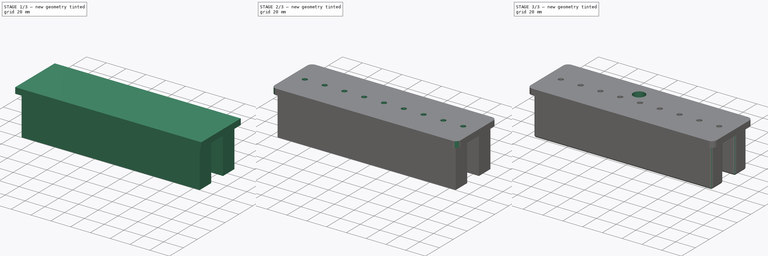
[diagram: build sequence overview — one tinted view per stage of 3, left to right]
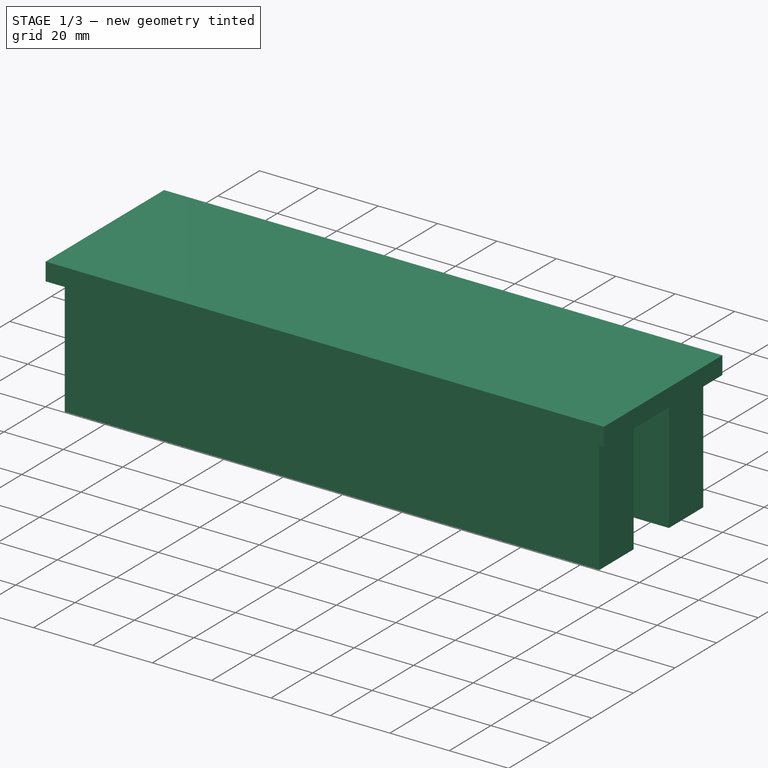
[diagram: stage 1 of 3 — iso view after this stage's code; geometry added in this stage tinted green]
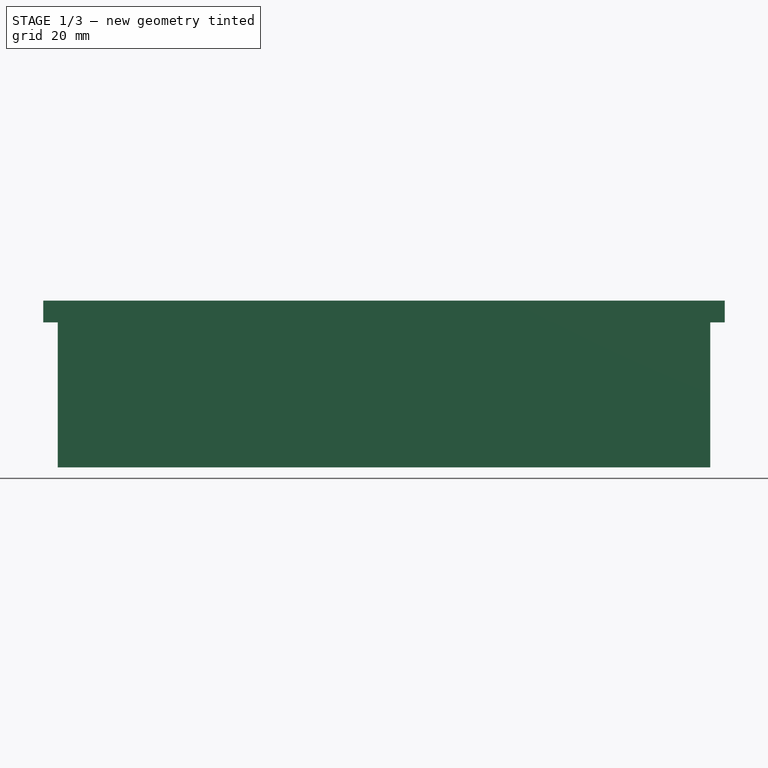
[diagram: stage 1 of 3 — front view after this stage's code; geometry added in this stage tinted green]
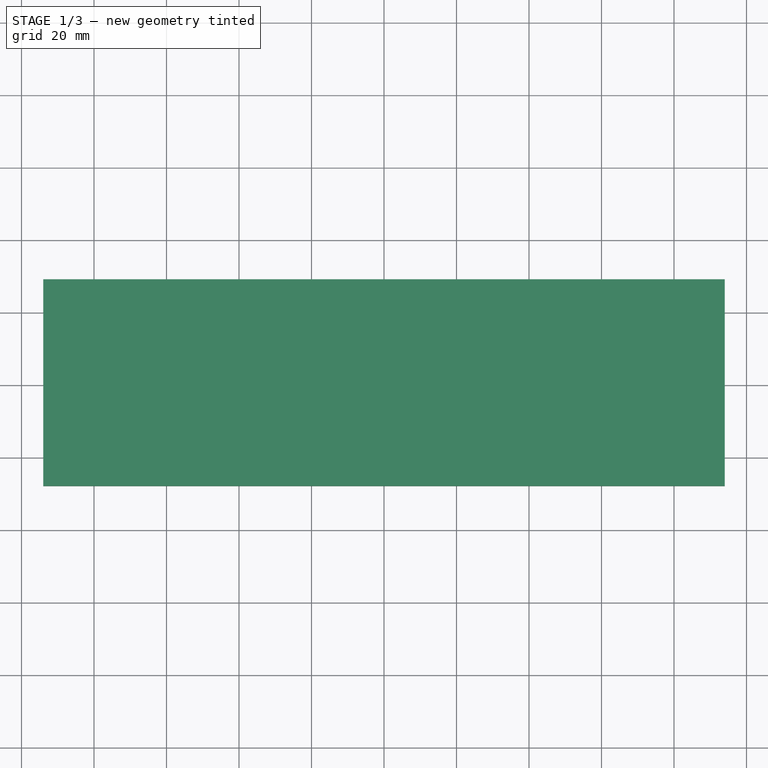
[diagram: stage 1 of 3 — top view after this stage's code; geometry added in this stage tinted green]
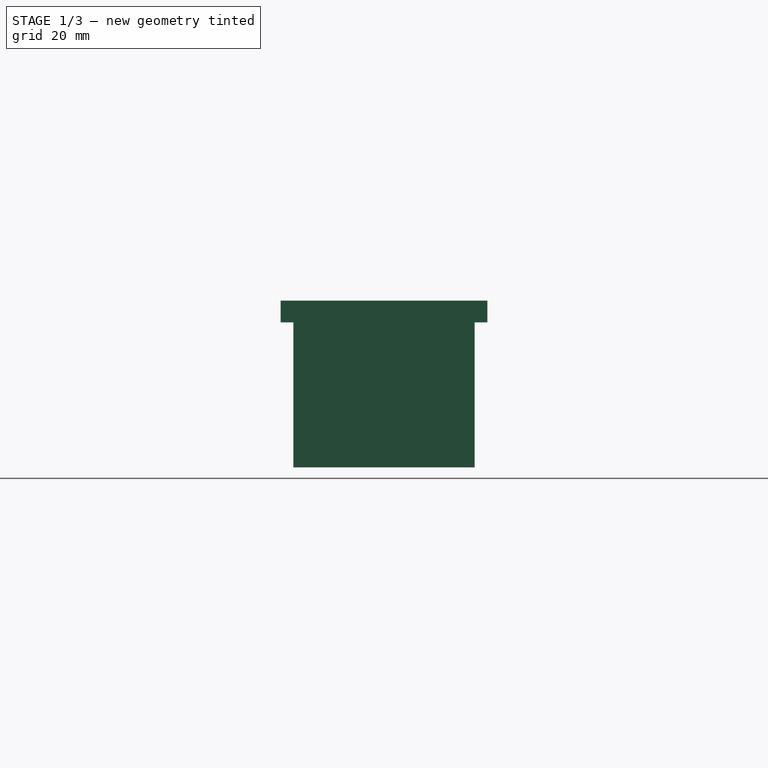
[diagram: stage 1 of 3 — right view after this stage's code; geometry added in this stage tinted green]
FCSTD DOCUMENT  (FreeCAD 0.18R16155 (Git))
Label: base
License: All rights reserved
LicenseURL: http://en.wikipedia.org/wiki/All_rights_reserved
objects: Sketcher::SketchObject×7, PartDesign::Pocket×4, PartDesign::Pad×2, PartDesign::Fillet×2, PartDesign::Body×1
note: 22 computed .brp shape members not serialized (recipe doc carries the construction recipe); baked Part::Feature solids carry a one-line shape summary decoded from their .brp

FEATURE [Sketcher::SketchObject] Sketch
  MapMode = 5
  Support = -> [XY_Plane]
  sketch-geometry (4):
    g0: LineSegment StartX=-90 StartY=25 StartZ=0 EndX=90 EndY=25 EndZ=0
    g1: LineSegment StartX=90 StartY=25 StartZ=0 EndX=90 EndY=-25 EndZ=0
    g2: LineSegment StartX=90 StartY=-25 StartZ=0 EndX=-90 EndY=-25 EndZ=0
    g3: LineSegment StartX=-90 StartY=-25 StartZ=0 EndX=-90 EndY=25 EndZ=0
  constraints (11):
    c: Coincident(g0,g1)
    c: Coincident(g1,g2)
    c: Coincident(g2,g3)
    c: Coincident(g3,g0)
    c: Horizontal(g0)
    c: Horizontal(g2)
    c: Vertical(g1)
    c: Vertical(g3)
    c: Symmetric(g2,g0,g-1)
    c: DistanceX(g0,g0) = 180
    c: DistanceY(g1,g1) = 50
FEATURE [PartDesign::Pad] Pad
  Length = 40
  Length2 = 100
  Profile = -> Sketch
  Type = 0
FEATURE [Sketcher::SketchObject] Sketch001
  MapMode = 5
  Placement = pos=(0,0,40) rot=(0,0,1;0rad)
  Support = -> [Pad]
  sketch-geometry (4):
    g0: LineSegment StartX=-94 StartY=-28.5 StartZ=0 EndX=94 EndY=-28.5 EndZ=0
    g1: LineSegment StartX=94 StartY=-28.5 StartZ=0 EndX=94 EndY=28.5 EndZ=0
    g2: LineSegment StartX=94 StartY=28.5 StartZ=0 EndX=-94 EndY=28.5 EndZ=0
    g3: LineSegment StartX=-94 StartY=28.5 StartZ=0 EndX=-94 EndY=-28.5 EndZ=0
  constraints (11):
    c: Coincident(g0,g1)
    c: Coincident(g1,g2)
    c: Coincident(g2,g3)
    c: Coincident(g3,g0)
    c: Horizontal(g0)
    c: Horizontal(g2)
    c: Vertical(g1)
    c: Vertical(g3)
    c: Symmetric(g1,g0,g-1)
    c: DistanceY(g1,g1) = 57
    c: DistanceX(g2,g2) = 188
FEATURE [PartDesign::Pad] Pad001
  BaseFeature = -> Pad
  Length = 6
  Length2 = 100
  Profile = -> Sketch001
  Type = 0
FEATURE [Sketcher::SketchObject] Sketch002
  MapMode = 5
  Placement = pos=(0,0,0) rot=(1,0,0;3.14159rad)
  Support = -> [Pad001]
FEATURE [Sketcher::SketchObject] Sketch003
  ExternalGeometry = -> [Pad001]
  MapMode = 5
  Placement = pos=(0,0,0) rot=(1,0,0;3.14159rad)
  Support = -> [Pad001]
  expr: Constraints[66] = Constraints.wall_thickness
  expr: Constraints[54] = Constraints.wall_thickness
  expr: Constraints[53] = Constraints.wall_thickness
  expr: Constraints[52] = Constraints.wall_thickness
  expr: Constraints[9] = Constraints.wall_thickness
  sketch-geometry (26):
    g0: LineSegment StartX=-85 StartY=-20 StartZ=0 EndX=85 EndY=-20 EndZ=0
    g1: LineSegment [constr] StartX=85 StartY=-20 StartZ=0 EndX=85 EndY=20 EndZ=0
    g2: LineSegment StartX=85 StartY=20 StartZ=0 EndX=-85 EndY=20 EndZ=0
    g3: LineSegment [constr] StartX=-85 StartY=20 StartZ=0 EndX=-85 EndY=-20 EndZ=0
    g4: LineSegment StartX=-85 StartY=13.5 StartZ=0 EndX=-66 EndY=13.5 EndZ=0
    g5: LineSegment StartX=-66 StartY=13.5 StartZ=0 EndX=-66 EndY=-13.5 EndZ=0
    g6: LineSegment StartX=-66 StartY=-13.5 StartZ=0 EndX=-85 EndY=-13.5 EndZ=0
    g7: LineSegment [constr] StartX=-85 StartY=-13.5 StartZ=0 EndX=-85 EndY=13.5 EndZ=0
    g8: LineSegment StartX=85 StartY=13.5 StartZ=0 EndX=66 EndY=13.5 EndZ=0
    g9: LineSegment StartX=66 StartY=13.5 StartZ=0 EndX=66 EndY=-13.5 EndZ=0
    g10: LineSegment StartX=66 StartY=-13.5 StartZ=0 EndX=85 EndY=-13.5 EndZ=0
    g11: LineSegment [constr] StartX=85 StartY=-13.5 StartZ=0 EndX=85 EndY=13.5 EndZ=0
    g12: LineSegment StartX=-85 StartY=-13.5 StartZ=0 EndX=-85 EndY=-20 EndZ=0
    g13: LineSegment StartX=-85 StartY=13.5 StartZ=0 EndX=-85 EndY=20 EndZ=0
    g14: LineSegment StartX=85 StartY=13.5 StartZ=0 EndX=85 EndY=20 EndZ=0
    g15: LineSegment StartX=85 StartY=-13.5 StartZ=0 EndX=85 EndY=-20 EndZ=0
    g16: GeomPoint X=66 Y=0 Z=0
    g17: LineSegment StartX=-71 StartY=-8.5 StartZ=0 EndX=-121 EndY=-8.5 EndZ=0
    g18: LineSegment StartX=-121 StartY=-8.5 StartZ=0 EndX=-121 EndY=8.5 EndZ=0
    g19: LineSegment StartX=-121 StartY=8.5 StartZ=0 EndX=-71 EndY=8.5 EndZ=0
    g20: LineSegment StartX=-71 StartY=8.5 StartZ=0 EndX=-71 EndY=-8.5 EndZ=0
    g21: LineSegment StartX=71 StartY=-8.5 StartZ=0 EndX=121 EndY=-8.5 EndZ=0
    g22: LineSegment StartX=121 StartY=-8.5 StartZ=0 EndX=121 EndY=8.5 EndZ=0
    g23: LineSegment StartX=121 StartY=8.5 StartZ=0 EndX=71 EndY=8.5 EndZ=0
    g24: LineSegment StartX=71 StartY=8.5 StartZ=0 EndX=71 EndY=-8.5 EndZ=0
    g25: GeomPoint X=-80 Y=0 Z=0
  constraints (72):
    c: Coincident(g0,g1)
    c: Coincident(g1,g2)
    c: Coincident(g2,g3)
    c: Coincident(g3,g0)
    c: Horizontal(g0)
    c: Horizontal(g2)
    c: Vertical(g1)
    c: Vertical(g3)
    c: Symmetric(g1,g0,g-1)
    c: DistanceX(g1,g-4) = 5
    c: DistanceY(g1,g-4) = 5  'wall_thickness'
    c: Coincident(g4,g5)
    c: Coincident(g5,g6)
    c: Coincident(g6,g7)
    c: Coincident(g7,g4)
    c: Horizontal(g4)
    c: Horizontal(g6)
    c: Vertical(g5)
    c: Vertical(g7)
    c: PointOnObject(g4,g3)
    c: Coincident(g8,g9)
    c: Coincident(g9,g10)
    c: Coincident(g10,g11)
    c: Coincident(g11,g8)
    c: Horizontal(g8)
    c: Horizontal(g10)
    c: Vertical(g9)
    c: Vertical(g11)
    c: PointOnObject(g8,g1)
    c: Horizontal(g9,g5)
    c: Horizontal(g4,g8)
    c: Coincident(g12,g6)
    c: Coincident(g12,g0)
    c: Coincident(g13,g4)
    c: Coincident(g13,g2)
    c: Coincident(g14,g8)
    c: Coincident(g14,g2)
    c: Coincident(g15,g10)
    c: Coincident(g15,g0)
    c: PointOnObject(g16,g-1)
    c: Symmetric(g9,g8,g16)
    c: DistanceX(g8,g8) = 19
    c: Equal(g8,g4)
    c: DistanceY(g9,g9) = 27
    c: Coincident(g17,g18)
    c: Coincident(g18,g19)
    c: Coincident(g19,g20)
    c: Coincident(g20,g17)
    c: Horizontal(g17)
    c: Horizontal(g19)
    c: Vertical(g18)
    c: Vertical(g20)
    c: DistanceY(g5,g17) = 5
    c: DistanceX(g17,g5) = 5
    c: DistanceY(g19,g4) = 5
    c: DistanceX(g17,g17) = 50
    c: Coincident(g21,g22)
    c: Coincident(g22,g23)
    c: Coincident(g23,g24)
    c: Coincident(g24,g21)
    c: Horizontal(g21)
    c: Horizontal(g23)
    c: Vertical(g22)
    c: Vertical(g24)
    c: Horizontal(g21,g17)
    c: Horizontal(g23,g19)
    c: DistanceX(g9,g21) = 5
    c: DistanceX(g21,g21) = 50
    c: DistanceY(g20,g20) = 17
    c: PointOnObject(g25,g-1)
    c: DistanceX(g25,g-1) = 80
    c: DistanceX(g25,g17) = 9
FEATURE [PartDesign::Pocket] Pocket
  BaseFeature = -> Pad001
  Length = 38
  Length2 = 100
  Profile = -> Sketch003
  Type = 0
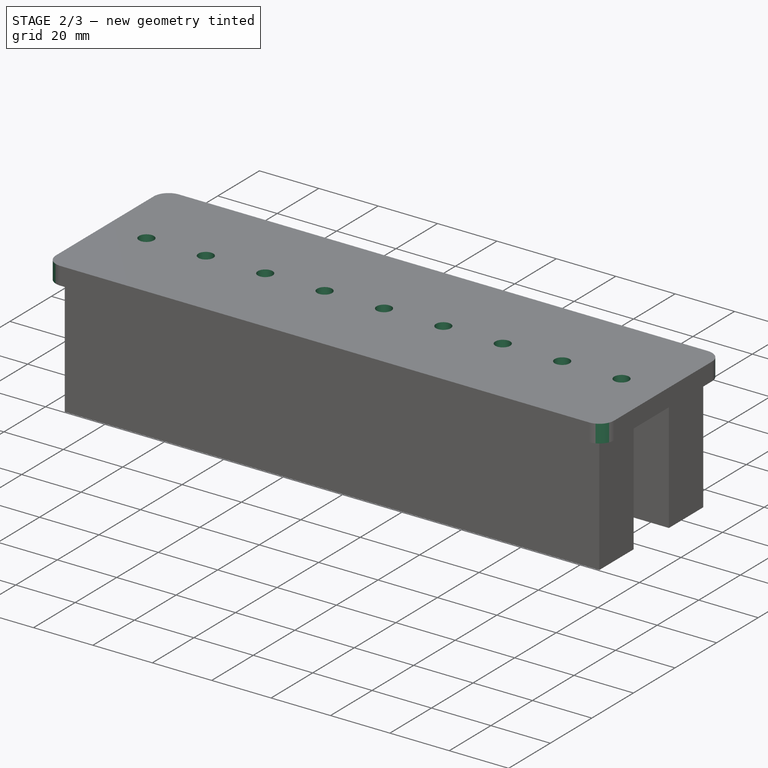
[diagram: stage 2 of 3 — iso view after this stage's code; geometry added in this stage tinted green]
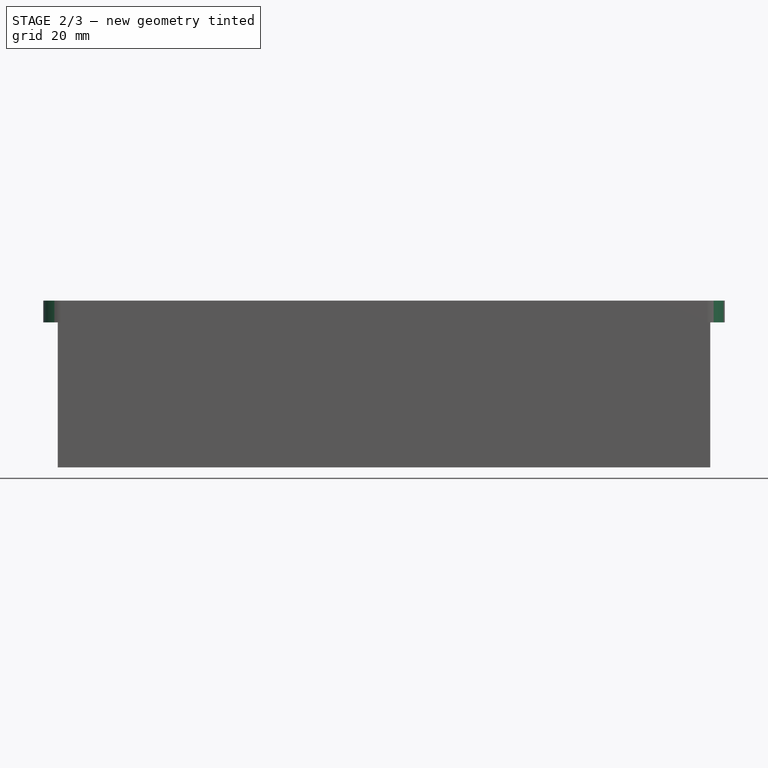
[diagram: stage 2 of 3 — front view after this stage's code; geometry added in this stage tinted green]
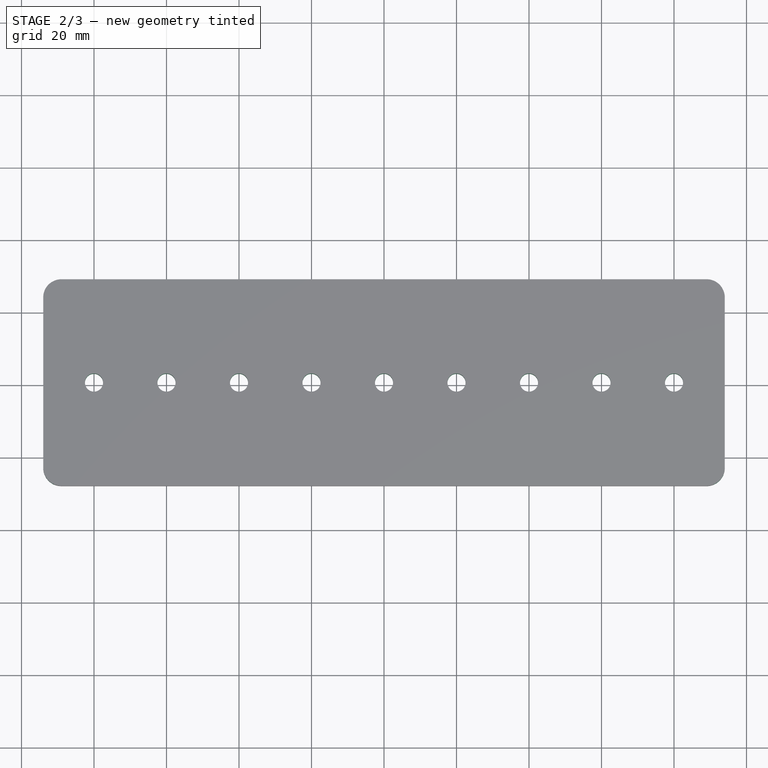
[diagram: stage 2 of 3 — top view after this stage's code; geometry added in this stage tinted green]
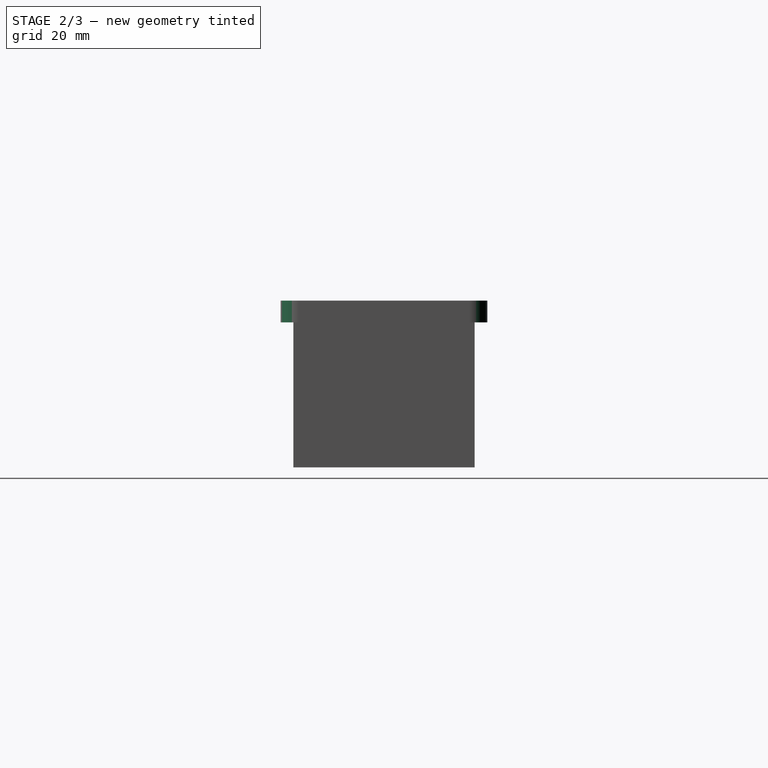
[diagram: stage 2 of 3 — right view after this stage's code; geometry added in this stage tinted green]
FEATURE [Sketcher::SketchObject] Sketch004
  MapMode = 5
  Placement = pos=(0,0,46) rot=(0,0,1;0rad)
  Support = -> [Pocket]
  sketch-geometry (17):
    g0: Circle CenterX=-80 CenterY=0 CenterZ=0 NormalX=0 NormalY=0 NormalZ=1 AngleXU=0 Radius=2.5
    g1: Circle CenterX=-60 CenterY=1.8133e-12 CenterZ=0 NormalX=0 NormalY=0 NormalZ=1 AngleXU=0 Radius=2.5
    g2: LineSegment [constr] StartX=-80 StartY=0 StartZ=0 EndX=-60 EndY=1.8133e-12 EndZ=0
    g3: Circle CenterX=-40 CenterY=-1.21888e-11 CenterZ=0 NormalX=0 NormalY=0 NormalZ=1 AngleXU=0 Radius=2.5
    g4: LineSegment [constr] StartX=-60 StartY=1.8133e-12 StartZ=0 EndX=-40 EndY=-1.21888e-11 EndZ=0
    g5: Circle CenterX=-20 CenterY=-1.01915e-11 CenterZ=0 NormalX=0 NormalY=0 NormalZ=1 AngleXU=0 Radius=2.5
    g6: LineSegment [constr] StartX=-40 StartY=-1.21888e-11 StartZ=0 EndX=-20 EndY=-1.01915e-11 EndZ=0
    g7: Circle CenterX=3.6e-15 CenterY=-6.7307e-12 CenterZ=0 NormalX=0 NormalY=0 NormalZ=1 AngleXU=0 Radius=2.5
    g8: LineSegment [constr] StartX=-20 StartY=-1.01915e-11 StartZ=0 EndX=3.6e-15 EndY=-6.7307e-12 EndZ=0
    g9: Circle CenterX=20 CenterY=-3.269e-12 CenterZ=0 NormalX=0 NormalY=0 NormalZ=1 AngleXU=0 Radius=2.5
    g10: LineSegment [constr] StartX=3.6e-15 StartY=-6.7307e-12 StartZ=0 EndX=20 EndY=-3.269e-12 EndZ=0
    g11: Circle CenterX=40 CenterY=2.555e-13 CenterZ=0 NormalX=0 NormalY=0 NormalZ=1 AngleXU=0 Radius=2.5
    g12: LineSegment [constr] StartX=20 StartY=-3.269e-12 StartZ=0 EndX=40 EndY=2.555e-13 EndZ=0
    g13: Circle CenterX=60 CenterY=6.7422e-12 CenterZ=0 NormalX=0 NormalY=0 NormalZ=1 AngleXU=0 Radius=2.5
    g14: LineSegment [constr] StartX=40 StartY=2.555e-13 StartZ=0 EndX=60 EndY=6.7422e-12 EndZ=0
    g15: Circle CenterX=80 CenterY=9.5e-14 CenterZ=0 NormalX=0 NormalY=0 NormalZ=1 AngleXU=0 Radius=2.5
    g16: LineSegment [constr] StartX=60 StartY=6.7422e-12 StartZ=0 EndX=80 EndY=9.5e-14 EndZ=0
  constraints (42):
    c: PointOnObject(g0,g-1)
    c: Diameter(g0) = 5
    c: Diameter(g1) = 5
    c: Coincident(g0,g2)
    c: Coincident(g1,g2)
    c: Distance(g2) = 20
    c: Angle(g2) = 0
    c: Diameter(g3) = 5
    c: Coincident(g1,g4)
    c: Coincident(g3,g4)
    c: Equal(g2,g4)
    c: Parallel(g4,g2)
    c: Diameter(g5) = 5
    c: Coincident(g3,g6)
    c: Coincident(g5,g6)
    c: Equal(g2,g6)
    c: Parallel(g6,g2)
    c: Diameter(g7) = 5
    c: Coincident(g5,g8)
    c: Coincident(g7,g8)
    c: Equal(g2,g8)
    c: Parallel(g8,g2)
    c: Diameter(g9) = 5
    c: Coincident(g7,g10)
    c: Coincident(g9,g10)
    c: Equal(g2,g10)
    c: Parallel(g10,g2)
    c: Diameter(g11) = 5
    c: Coincident(g9,g12)
    c: Coincident(g11,g12)
    c: Equal(g2,g12)
    c: Parallel(g12,g2)
    c: Diameter(g13) = 5
    c: Coincident(g11,g14)
    c: Coincident(g13,g14)
    c: Equal(g2,g14)
    c: Parallel(g14,g2)
    c: Diameter(g15) = 5
    c: Coincident(g13,g16)
    c: Coincident(g15,g16)
    c: Equal(g2,g16)
    c: Symmetric(g15,g0,g-1)
FEATURE [PartDesign::Pocket] Pocket001
  BaseFeature = -> Pocket
  Length = 5
  Length2 = 100
  Profile = -> Sketch004
  Type = 1
FEATURE [PartDesign::Fillet] Fillet
  Base = -> Pocket001 [Edge8,Edge2,Edge1,Edge5]
  BaseFeature = -> Pocket001
  Radius = 5
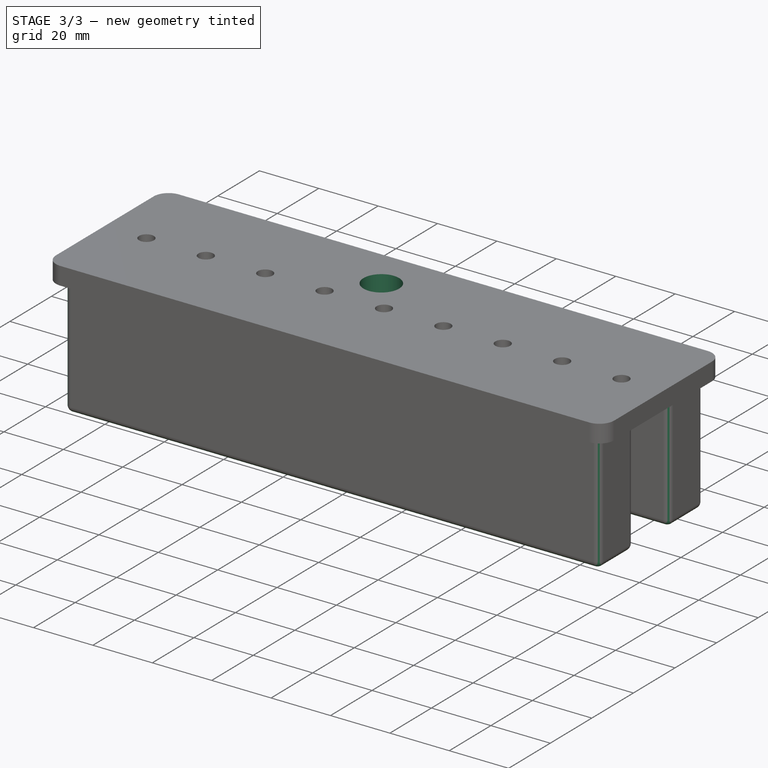
[diagram: stage 3 of 3 — iso view after this stage's code; geometry added in this stage tinted green]
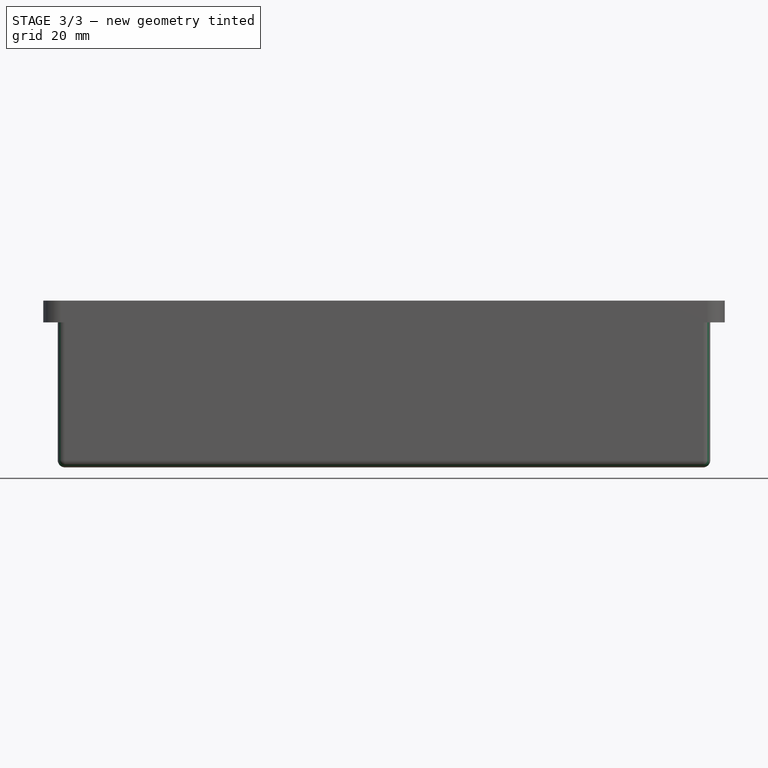
[diagram: stage 3 of 3 — front view after this stage's code; geometry added in this stage tinted green]
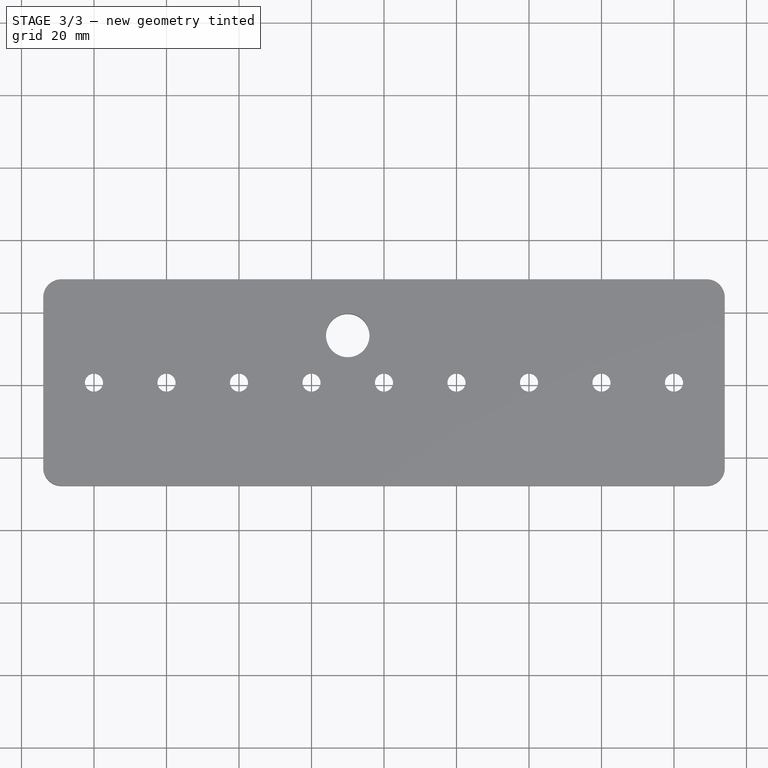
[diagram: stage 3 of 3 — top view after this stage's code; geometry added in this stage tinted green]
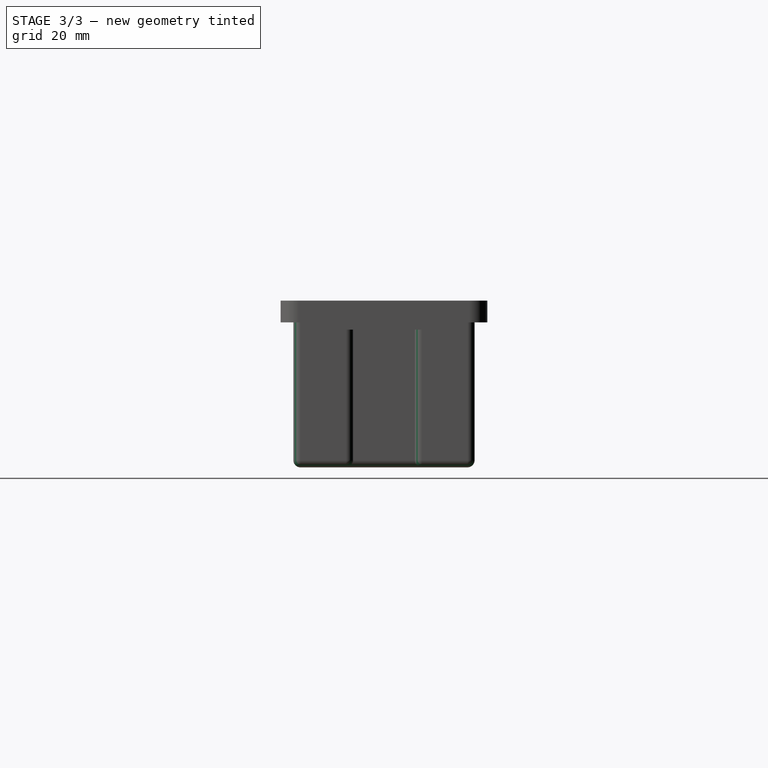
[diagram: stage 3 of 3 — right view after this stage's code; geometry added in this stage tinted green]
FEATURE [PartDesign::Fillet] Fillet001
  Base = -> Fillet [Face24,Edge39,Edge43,Edge41,Edge38,Edge45,Edge44,Edge52,Edge50,Edge48,Edge114,Edge113,Edge120,Edge119]
  BaseFeature = -> Fillet
  Radius = 2
FEATURE [Sketcher::SketchObject] Sketch005
  MapMode = 5
  Placement = pos=(0,0,38) rot=(1,0,0;3.14159rad)
  Support = -> [Fillet001]
  sketch-geometry (71):
    g0: LineSegment StartX=-77.7483 StartY=-3.9 StartZ=0 EndX=-75.4967 EndY=4e-16 EndZ=0
    g1: LineSegment StartX=-75.4967 StartY=4e-16 StartZ=0 EndX=-77.7483 EndY=3.9 EndZ=0
    g2: LineSegment StartX=-77.7483 StartY=3.9 StartZ=0 EndX=-82.2517 EndY=3.9 EndZ=0
    g3: LineSegment StartX=-82.2517 StartY=3.9 StartZ=0 EndX=-84.5033 EndY=4e-16 EndZ=0
    g4: LineSegment StartX=-84.5033 StartY=4e-16 StartZ=0 EndX=-82.2517 EndY=-3.9 EndZ=0
    g5: LineSegment StartX=-82.2517 StartY=-3.9 StartZ=0 EndX=-77.7483 EndY=-3.9 EndZ=0
    g6: Circle [constr] CenterX=-80 CenterY=0 CenterZ=0 NormalX=0 NormalY=0 NormalZ=1 AngleXU=0 Radius=4.50333
    g7: LineSegment StartX=-57.7483 StartY=-3.9 StartZ=0 EndX=-55.4967 EndY=0 EndZ=0
    g8: LineSegment StartX=-55.4967 StartY=0 StartZ=0 EndX=-57.7483 EndY=3.9 EndZ=0
    g9: LineSegment StartX=-57.7483 StartY=3.9 StartZ=0 EndX=-62.2517 EndY=3.9 EndZ=0
    g10: LineSegment StartX=-62.2517 StartY=3.9 StartZ=0 EndX=-64.5033 EndY=4e-16 EndZ=0
    g11: LineSegment StartX=-64.5033 StartY=4e-16 StartZ=0 EndX=-62.2517 EndY=-3.9 EndZ=0
    g12: LineSegment StartX=-62.2517 StartY=-3.9 StartZ=0 EndX=-57.7483 EndY=-3.9 EndZ=0
    g13: Circle [constr] CenterX=-60 CenterY=4e-16 CenterZ=0 NormalX=0 NormalY=0 NormalZ=1 AngleXU=0 Radius=4.50333
    g14: LineSegment [constr] StartX=-77.7483 StartY=-3.9 StartZ=0 EndX=-57.7483 EndY=-3.9 EndZ=0
    g15: LineSegment StartX=-37.7483 StartY=-3.9 StartZ=0 EndX=-35.4967 EndY=0 EndZ=0
    g16: LineSegment StartX=-35.4967 StartY=0 StartZ=0 EndX=-37.7483 EndY=3.9 EndZ=0
    g17: LineSegment StartX=-37.7483 StartY=3.9 StartZ=0 EndX=-42.2517 EndY=3.9 EndZ=0
    g18: LineSegment StartX=-42.2517 StartY=3.9 StartZ=0 EndX=-44.5033 EndY=4e-16 EndZ=0
    g19: LineSegment StartX=-44.5033 StartY=4e-16 StartZ=0 EndX=-42.2517 EndY=-3.9 EndZ=0
    g20: LineSegment StartX=-42.2517 StartY=-3.9 StartZ=0 EndX=-37.7483 EndY=-3.9 EndZ=0
    g21: Circle [constr] CenterX=-40 CenterY=3e-16 CenterZ=0 NormalX=0 NormalY=0 NormalZ=1 AngleXU=0 Radius=4.50333
    g22: LineSegment [constr] StartX=-57.7483 StartY=-3.9 StartZ=0 EndX=-37.7483 EndY=-3.9 EndZ=0
    g23: LineSegment StartX=-17.7483 StartY=-3.9 StartZ=0 EndX=-15.4967 EndY=0 EndZ=0
    g24: LineSegment StartX=-15.4967 StartY=0 StartZ=0 EndX=-17.7483 EndY=3.9 EndZ=0
    g25: LineSegment StartX=-17.7483 StartY=3.9 StartZ=0 EndX=-22.2517 EndY=3.9 EndZ=0
    g26: LineSegment StartX=-22.2517 StartY=3.9 StartZ=0 EndX=-24.5033 EndY=0 EndZ=0
    g27: LineSegment StartX=-24.5033 StartY=0 StartZ=0 EndX=-22.2517 EndY=-3.9 EndZ=0
    g28: LineSegment StartX=-22.2517 StartY=-3.9 StartZ=0 EndX=-17.7483 EndY=-3.9 EndZ=0
    g29: Circle [constr] CenterX=-20 CenterY=-2e-16 CenterZ=0 NormalX=0 NormalY=0 NormalZ=1 AngleXU=0 Radius=4.50333
    g30: LineSegment [constr] StartX=-37.7483 StartY=-3.9 StartZ=0 EndX=-17.7483 EndY=-3.9 EndZ=0
    g31: LineSegment StartX=2.25167 StartY=-3.9 StartZ=0 EndX=4.50333 EndY=4e-16 EndZ=0
    g32: LineSegment StartX=4.50333 StartY=4e-16 StartZ=0 EndX=2.25167 EndY=3.9 EndZ=0
    g33: LineSegment StartX=2.25167 StartY=3.9 StartZ=0 EndX=-2.25167 EndY=3.9 EndZ=0
    g34: LineSegment StartX=-2.25167 StartY=3.9 StartZ=0 EndX=-4.50333 EndY=-9e-16 EndZ=0
    g35: LineSegment StartX=-4.50333 StartY=-9e-16 StartZ=0 EndX=-2.25167 EndY=-3.9 EndZ=0
    g36: LineSegment StartX=-2.25167 StartY=-3.9 StartZ=0 EndX=2.25167 EndY=-3.9 EndZ=0
    g37: Circle [constr] CenterX=0 CenterY=0 CenterZ=0 NormalX=0 NormalY=0 NormalZ=1 AngleXU=0 Radius=4.50333
    g38: LineSegment [constr] StartX=-17.7483 StartY=-3.9 StartZ=0 EndX=2.25167 EndY=-3.9 EndZ=0
    g39: LineSegment StartX=22.2517 StartY=-3.9 StartZ=0 EndX=24.5033 EndY=0 EndZ=0
    g40: LineSegment StartX=24.5033 StartY=0 StartZ=0 EndX=22.2517 EndY=3.9 EndZ=0
    g41: LineSegment StartX=22.2517 StartY=3.9 StartZ=0 EndX=17.7483 EndY=3.9 EndZ=0
    g42: LineSegment StartX=17.7483 StartY=3.9 StartZ=0 EndX=15.4967 EndY=-4e-16 EndZ=0
    g43: LineSegment StartX=15.4967 StartY=-4e-16 StartZ=0 EndX=17.7483 EndY=-3.9 EndZ=0
    g44: LineSegment StartX=17.7483 StartY=-3.9 StartZ=0 EndX=22.2517 EndY=-3.9 EndZ=0
    g45: Circle [constr] CenterX=20 CenterY=-4e-16 CenterZ=0 NormalX=0 NormalY=0 NormalZ=1 AngleXU=0 Radius=4.50333
    g46: LineSegment [constr] StartX=2.25167 StartY=-3.9 StartZ=0 EndX=22.2517 EndY=-3.9 EndZ=0
    g47: LineSegment StartX=42.2517 StartY=-3.9 StartZ=0 EndX=44.5033 EndY=-4e-16 EndZ=0
    g48: LineSegment StartX=44.5033 StartY=-4e-16 StartZ=0 EndX=42.2517 EndY=3.9 EndZ=0
    g49: LineSegment StartX=42.2517 StartY=3.9 StartZ=0 EndX=37.7483 EndY=3.9 EndZ=0
    g50: LineSegment StartX=37.7483 StartY=3.9 StartZ=0 EndX=35.4967 EndY=-4e-16 EndZ=0
    g51: LineSegment StartX=35.4967 StartY=-4e-16 StartZ=0 EndX=37.7483 EndY=-3.9 EndZ=0
    g52: LineSegment StartX=37.7483 StartY=-3.9 StartZ=0 EndX=42.2517 EndY=-3.9 EndZ=0
    g53: Circle [constr] CenterX=40 CenterY=-3e-16 CenterZ=0 NormalX=0 NormalY=0 NormalZ=1 AngleXU=0 Radius=4.50333
    g54: LineSegment [constr] StartX=22.2517 StartY=-3.9 StartZ=0 EndX=42.2517 EndY=-3.9 EndZ=0
    g55: LineSegment StartX=62.2517 StartY=-3.9 StartZ=0 EndX=64.5033 EndY=-4e-16 EndZ=0
    g56: LineSegment StartX=64.5033 StartY=-4e-16 StartZ=0 EndX=62.2517 EndY=3.9 EndZ=0
    g57: LineSegment StartX=62.2517 StartY=3.9 StartZ=0 EndX=57.7483 EndY=3.9 EndZ=0
    g58: LineSegment StartX=57.7483 StartY=3.9 StartZ=0 EndX=55.4967 EndY=-4e-16 EndZ=0
    g59: LineSegment StartX=55.4967 StartY=-4e-16 StartZ=0 EndX=57.7483 EndY=-3.9 EndZ=0
    g60: LineSegment StartX=57.7483 StartY=-3.9 StartZ=0 EndX=62.2517 EndY=-3.9 EndZ=0
    g61: Circle [constr] CenterX=60 CenterY=1e-16 CenterZ=0 NormalX=0 NormalY=0 NormalZ=1 AngleXU=0 Radius=4.50333
    g62: LineSegment [constr] StartX=42.2517 StartY=-3.9 StartZ=0 EndX=62.2517 EndY=-3.9 EndZ=0
    g63: LineSegment StartX=82.2517 StartY=-3.9 StartZ=0 EndX=84.5033 EndY=-9e-16 EndZ=0
    g64: LineSegment StartX=84.5033 StartY=-9e-16 StartZ=0 EndX=82.2517 EndY=3.9 EndZ=0
    g65: LineSegment StartX=82.2517 StartY=3.9 StartZ=0 EndX=77.7483 EndY=3.9 EndZ=0
    g66: LineSegment StartX=77.7483 StartY=3.9 StartZ=0 EndX=75.4967 EndY=-9e-16 EndZ=0
    g67: LineSegment StartX=75.4967 StartY=-9e-16 StartZ=0 EndX=77.7483 EndY=-3.9 EndZ=0
    g68: LineSegment StartX=77.7483 StartY=-3.9 StartZ=0 EndX=82.2517 EndY=-3.9 EndZ=0
    g69: Circle [constr] CenterX=80 CenterY=-7e-16 CenterZ=0 NormalX=0 NormalY=0 NormalZ=1 AngleXU=0 Radius=4.50333
    g70: LineSegment [constr] StartX=62.2517 StartY=-3.9 StartZ=0 EndX=82.2517 EndY=-3.9 EndZ=0
  constraints (168):
    c: Coincident(g0,g1)
    c: Coincident(g1,g2)
    c: Coincident(g2,g3)
    c: Coincident(g3,g4)
    c: Coincident(g4,g5)
    c: Coincident(g5,g0)
    c: Equal(g0, g1-g5) x5
    c: PointOnObject(g0,g6)
    c: PointOnObject(g1,g6)
    c: PointOnObject(g2,g6)
    c: PointOnObject(g3,g6)
    c: PointOnObject(g4,g6)
    c: PointOnObject(g5,g6)
    c: Horizontal(g5)
    c: DistanceY(g0,g1) = 7.8  'M5_nut_size'
    c: PointOnObject(g6,g-1)
    c: Coincident(g7,g8)
    c: Coincident(g8,g9)
    c: Coincident(g9,g10)
    c: Coincident(g10,g11)
    c: Coincident(g11,g12)
    c: Coincident(g12,g7)
    c: Equal(g7, g8-g12) x5
    c: PointOnObject(g7,g13)
    c: PointOnObject(g8,g13)
    c: PointOnObject(g9,g13)
    c: PointOnObject(g10,g13)
    c: PointOnObject(g11,g13)
    c: PointOnObject(g12,g13)
    c: Horizontal(g12)
    c: DistanceY(g7,g8) = 7.8  'M5_nut_size'
    c: Coincident(g0,g14)
    c: Coincident(g7,g14)
    c: Distance(g14) = 20
    c: Angle(g14) = 0
    c: Coincident(g15,g16)
    c: Coincident(g16,g17)
    c: Coincident(g17,g18)
    c: Coincident(g18,g19)
    c: Coincident(g19,g20)
    c: Coincident(g20,g15)
    c: Equal(g15, g16-g20) x5
    c: PointOnObject(g15,g21)
    c: PointOnObject(g16,g21)
    c: PointOnObject(g17,g21)
    c: PointOnObject(g18,g21)
    c: PointOnObject(g19,g21)
    c: PointOnObject(g20,g21)
    c: Horizontal(g20)
    c: DistanceY(g15,g16) = 7.8  'M5_nut_size'
    c: Coincident(g7,g22)
    c: Coincident(g15,g22)
    c: Equal(g14,g22)
    c: Parallel(g22,g14)
    c: Coincident(g23,g24)
    c: Coincident(g24,g25)
    c: Coincident(g25,g26)
    c: Coincident(g26,g27)
    c: Coincident(g27,g28)
    c: Coincident(g28,g23)
    c: Equal(g23, g24-g28) x5
    c: PointOnObject(g23,g29)
    c: PointOnObject(g24,g29)
    c: PointOnObject(g25,g29)
    c: PointOnObject(g26,g29)
    c: PointOnObject(g27,g29)
    c: PointOnObject(g28,g29)
    c: Horizontal(g28)
    c: DistanceY(g23,g24) = 7.8  'M5_nut_size'
    c: Coincident(g15,g30)
    c: Coincident(g23,g30)
    c: Equal(g14,g30)
    c: Parallel(g30,g14)
    c: Coincident(g31,g32)
    c: Coincident(g32,g33)
    c: Coincident(g33,g34)
    c: Coincident(g34,g35)
    c: Coincident(g35,g36)
    c: Coincident(g36,g31)
    c: Equal(g31, g32-g36) x5
    c: PointOnObject(g31,g37)
    c: PointOnObject(g32,g37)
    c: PointOnObject(g33,g37)
    c: PointOnObject(g34,g37)
    c: PointOnObject(g35,g37)
    c: PointOnObject(g36,g37)
    c: Horizontal(g36)
    c: DistanceY(g31,g32) = 7.8  'M5_nut_size'
    c: Coincident(g23,g38)
    c: Coincident(g31,g38)
    c: Equal(g14,g38)
    c: Coincident(g39,g40)
    c: Coincident(g40,g41)
    c: Coincident(g41,g42)
    c: Coincident(g42,g43)
    c: Coincident(g43,g44)
    c: Coincident(g44,g39)
    c: Equal(g39, g40-g44) x5
    c: PointOnObject(g39,g45)
    c: PointOnObject(g40,g45)
    c: PointOnObject(g41,g45)
    c: PointOnObject(g42,g45)
    c: PointOnObject(g43,g45)
    c: PointOnObject(g44,g45)
    c: Horizontal(g44)
    c: DistanceY(g39,g40) = 7.8  'M5_nut_size'
    c: Coincident(g31,g46)
    c: Coincident(g39,g46)
    c: Equal(g14,g46)
    c: Parallel(g46,g14)
    c: Coincident(g47,g48)
    c: Coincident(g48,g49)
    c: Coincident(g49,g50)
    c: Coincident(g50,g51)
    c: Coincident(g51,g52)
    c: Coincident(g52,g47)
    c: Equal(g47, g48-g52) x5
    c: PointOnObject(g47,g53)
    c: PointOnObject(g48,g53)
    c: PointOnObject(g49,g53)
    c: PointOnObject(g50,g53)
    c: PointOnObject(g51,g53)
    c: PointOnObject(g52,g53)
    c: Horizontal(g52)
    c: DistanceY(g47,g48) = 7.8  'M5_nut_size'
    c: Coincident(g39,g54)
    c: Coincident(g47,g54)
    c: Equal(g14,g54)
    c: Parallel(g54,g14)
    c: Coincident(g55,g56)
    c: Coincident(g56,g57)
    c: Coincident(g57,g58)
    c: Coincident(g58,g59)
    c: Coincident(g59,g60)
    c: Coincident(g60,g55)
    c: Equal(g55, g56-g60) x5
    c: PointOnObject(g55,g61)
    c: PointOnObject(g56,g61)
    c: PointOnObject(g57,g61)
    c: PointOnObject(g58,g61)
    c: PointOnObject(g59,g61)
    c: PointOnObject(g60,g61)
    c: Horizontal(g60)
    c: DistanceY(g55,g56) = 7.8  'M5_nut_size'
    c: Coincident(g47,g62)
    c: Coincident(g55,g62)
    c: Equal(g14,g62)
    c: Parallel(g62,g14)
    c: Coincident(g63,g64)
    c: Coincident(g64,g65)
    c: Coincident(g65,g66)
    c: Coincident(g66,g67)
    c: Coincident(g67,g68)
    c: Coincident(g68,g63)
    c: Equal(g63, g64-g68) x5
    c: PointOnObject(g63,g69)
    c: PointOnObject(g64,g69)
    c: PointOnObject(g65,g69)
    c: PointOnObject(g66,g69)
    c: PointOnObject(g67,g69)
    c: PointOnObject(g68,g69)
    c: Horizontal(g68)
    c: DistanceY(g63,g64) = 7.8  'M5_nut_size'
    c: Coincident(g55,g70)
    c: Coincident(g63,g70)
    c: Equal(g14,g70)
    c: Parallel(g70,g14)
    c: Coincident(g37,g-1)
FEATURE [PartDesign::Pocket] Pocket002
  BaseFeature = -> Fillet001
  Length = 5
  Length2 = 100
  Profile = -> Sketch005
  Type = 0
FEATURE [Sketcher::SketchObject] Sketch006
  MapMode = 5
  Placement = pos=(0,0,38) rot=(1,0,0;3.14159rad)
  Support = -> [Pocket002]
  sketch-geometry (1):
    g0: Circle CenterX=-10 CenterY=-13 CenterZ=0 NormalX=0 NormalY=0 NormalZ=1 AngleXU=0 Radius=6
  constraints (3):
    c: Diameter(g0) = 12
    c: DistanceX(g0,g-1) = 10
    c: DistanceY(g0,g-1) = 13
FEATURE [PartDesign::Pocket] Pocket003
  BaseFeature = -> Pocket002
  Length = 5
  Length2 = 100
  Profile = -> Sketch006
  Type = 1
FEATURE [PartDesign::Body] Body
  Group = -> [Sketch,Pad,Sketch001,Pad001,Sketch002,Sketch003,Pocket,Sketch004,Pocket001,Fillet,Fillet001,Sketch005,Pocket002,Sketch006,Pocket003]
  Origin = -> Origin
  Tip = -> Pocket003
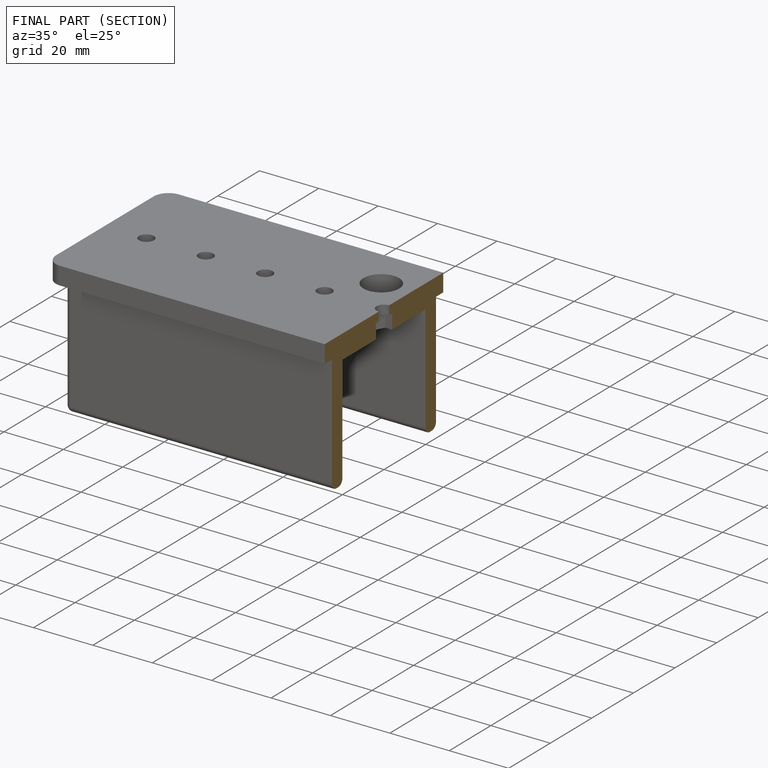
[diagram: finished part — half-section view (interior)]
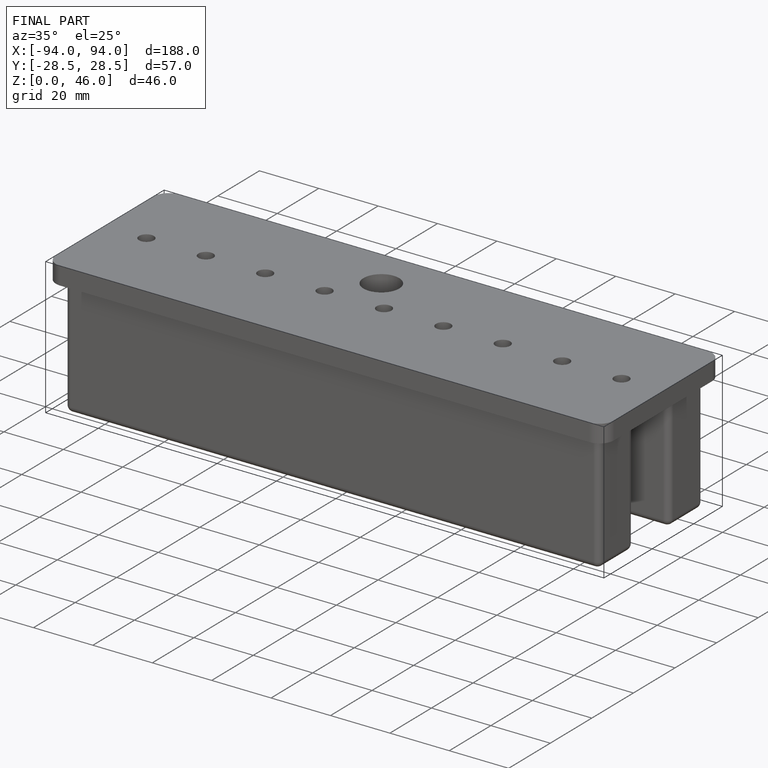
[diagram: finished part — iso view with bounding-box wireframe]
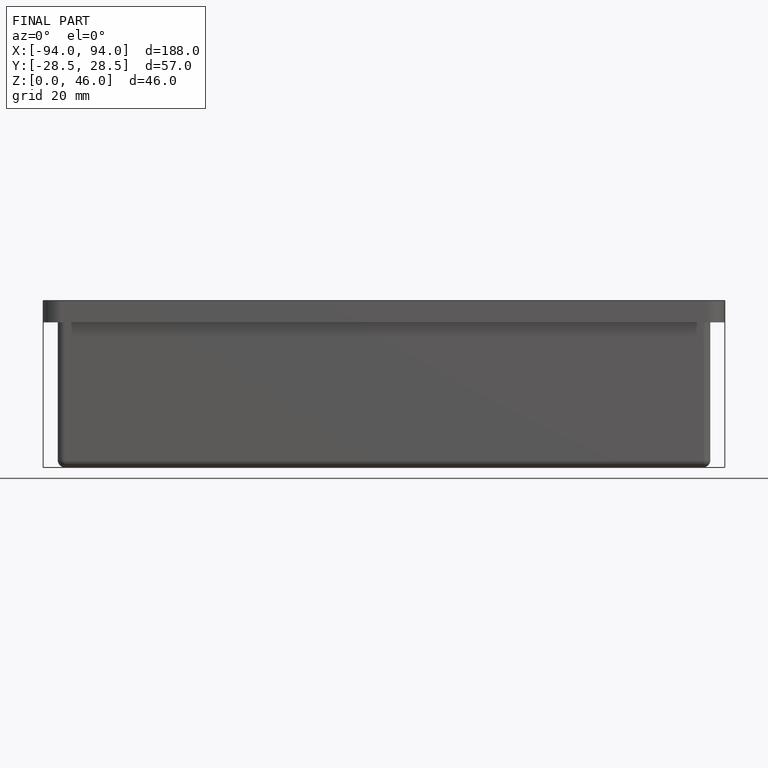
[diagram: finished part — front view with bounding-box wireframe]
